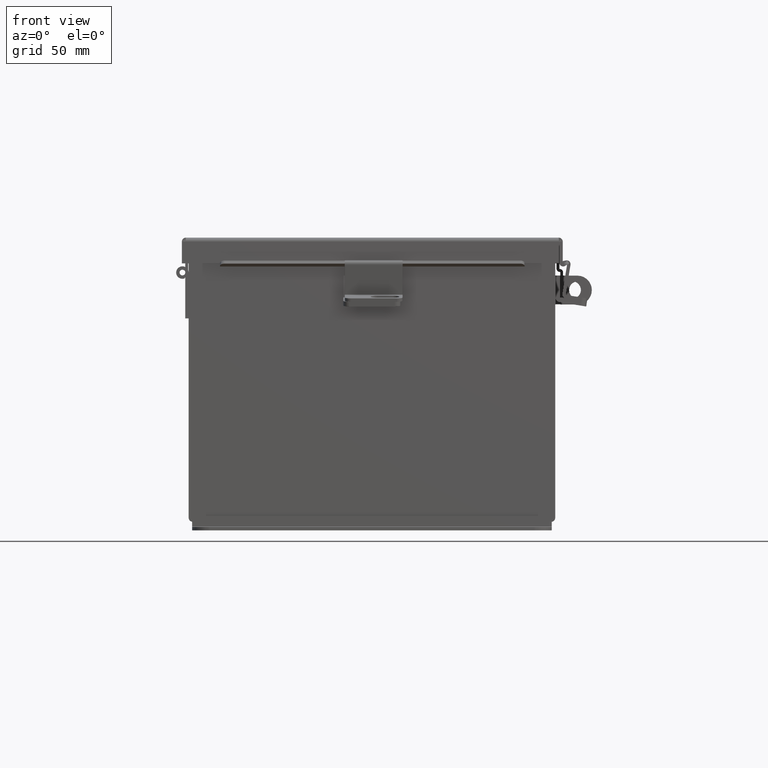
[diagram: clean part render]
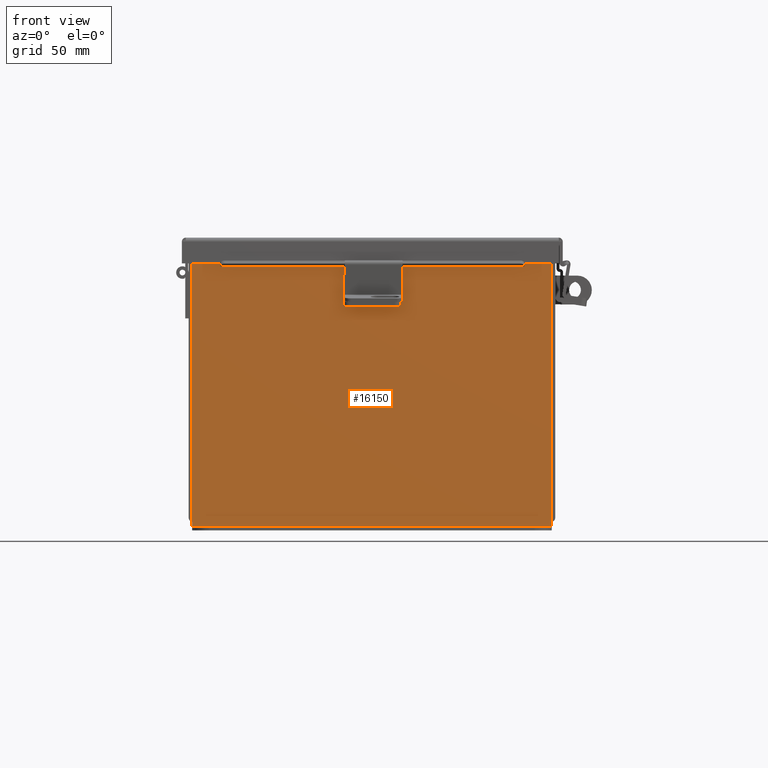
[diagram: same view with one face highlighted and labeled with its STEP entity id]
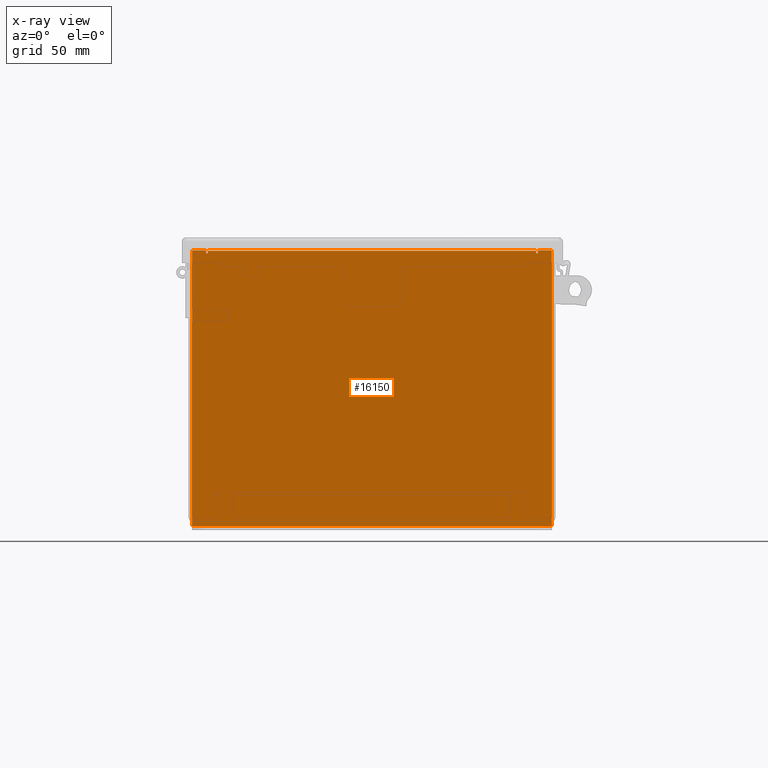
[diagram: x-ray of the same camera — body ghosted, the highlighted face saturated]
A machine part, front view. The second image highlights one B-rep face of the part: STEP entity #16150.
The next image is the same camera in x-ray: the body ghosted, the highlighted face saturated — about 0% of this face is hidden behind the body in this view.
In plain terms, the highlighted planar face has unit normal (-0, 1, -0).
Its self-contained STEP definition (entity closure, byte-faithful):
#58 = VERTEX_POINT ( 'NONE', #13696 ) ;
#595 = DIRECTION ( 'NONE',  ( 0.0000000000000000000, 0.0000000000000000000, -1.000000000000000000 ) ) ;
#620 = VERTEX_POINT ( 'NONE', #15763 ) ;
#646 = CARTESIAN_POINT ( 'NONE',  ( -3.619650000000000900, 0.0000000000000000000, 2.925299999999998200 ) ) ;
#700 = VERTEX_POINT ( 'NONE', #9577 ) ;
#835 = CARTESIAN_POINT ( 'NONE',  ( -3.619650000000000900, 0.0000000000000000000, 2.874949999999999200 ) ) ;
#1187 = EDGE_CURVE ( 'NONE', #3245, #10059, #8783, .T. ) ;
#1227 = DIRECTION ( 'NONE',  ( 1.000000000000000000, 4.910036603141682400E-031, -0.0000000000000000000 ) ) ;
#1308 = EDGE_CURVE ( 'NONE', #9601, #620, #6777, .T. ) ;
#1374 = LINE ( 'NONE', #2570, #14546 ) ;
#1511 = LINE ( 'NONE', #10007, #7909 ) ;
#1564 = VERTEX_POINT ( 'NONE', #835 ) ;
#1647 = VECTOR ( 'NONE', #6453, 39.37007874015748100 ) ;
#2064 = CARTESIAN_POINT ( 'NONE',  ( -3.582300000000000900, 1.092739197465705300E-015, 2.912299999999998300 ) ) ;
#2253 = PLANE ( 'NONE',  #7733 ) ;
#2278 = VERTEX_POINT ( 'NONE', #2742 ) ;
#2472 = ORIENTED_EDGE ( 'NONE', *, *, #3445, .T. ) ;
#2499 = VECTOR ( 'NONE', #8484, 39.37007874015748100 ) ;
#2570 = CARTESIAN_POINT ( 'NONE',  ( -3.925300000000000900, -1.092739197465705300E-015, -3.099299999999999900 ) ) ;
#2583 = DIRECTION ( 'NONE',  ( 0.0000000000000000000, 0.0000000000000000000, -1.000000000000000000 ) ) ;
#2742 = CARTESIAN_POINT ( 'NONE',  ( 3.619649999999999600, 8.741913579725642300E-015, 2.925300000000000500 ) ) ;
#2815 = VERTEX_POINT ( 'NONE', #3841 ) ;
#2977 = EDGE_CURVE ( 'NONE', #10059, #700, #7713, .T. ) ;
#3245 = VERTEX_POINT ( 'NONE', #15278 ) ;
#3320 = VECTOR ( 'NONE', #2583, 39.37007874015748100 ) ;
#3417 = VECTOR ( 'NONE', #14461, 39.37007874015748100 ) ;
#3445 = EDGE_CURVE ( 'NONE', #2278, #2815, #6797, .T. ) ;
#3558 = DIRECTION ( 'NONE',  ( 0.0000000000000000000, 0.0000000000000000000, -1.000000000000000000 ) ) ;
#3715 = ORIENTED_EDGE ( 'NONE', *, *, #13918, .F. ) ;
#3787 = VECTOR ( 'NONE', #8439, 39.37007874015748100 ) ;
#3841 = CARTESIAN_POINT ( 'NONE',  ( 3.925299999999998700, 8.741913579725642300E-015, 2.925300000000001800 ) ) ;
#4402 = DIRECTION ( 'NONE',  ( -2.170286390199978800E-014, -7.888609052210118100E-031, -1.000000000000000000 ) ) ;
#4623 = EDGE_CURVE ( 'NONE', #12218, #11769, #1374, .T. ) ;
#4918 = ORIENTED_EDGE ( 'NONE', *, *, #12412, .T. ) ;
#5026 = CIRCLE ( 'NONE', #14015, 0.01867500000000003900 ) ;
#5189 = CARTESIAN_POINT ( 'NONE',  ( -3.925300000000000900, 0.0000000000000000000, 2.925299999999999600 ) ) ;
#5682 = VECTOR ( 'NONE', #1227, 39.37007874015748100 ) ;
#5717 = CARTESIAN_POINT ( 'NONE',  ( -3.600975000000000900, 0.0000000000000000000, 2.874949999999999200 ) ) ;
#5919 = CARTESIAN_POINT ( 'NONE',  ( 3.582299999999998700, 0.0000000000000000000, 0.0000000000000000000 ) ) ;
#6089 = LINE ( 'NONE', #10164, #5682 ) ;
#6102 = FACE_OUTER_BOUND ( 'NONE', #8841, .T. ) ;
#6453 = DIRECTION ( 'NONE',  ( 0.0000000000000000000, 0.0000000000000000000, 1.000000000000000000 ) ) ;
#6713 = LINE ( 'NONE', #7582, #3320 ) ;
#6777 = LINE ( 'NONE', #7155, #3787 ) ;
#6797 = LINE ( 'NONE', #10611, #3417 ) ;
#6989 = DIRECTION ( 'NONE',  ( 0.0000000000000000000, 0.0000000000000000000, -1.000000000000000000 ) ) ;
#7155 = CARTESIAN_POINT ( 'NONE',  ( -3.582300000000000900, 0.0000000000000000000, 0.0000000000000000000 ) ) ;
#7195 = DIRECTION ( 'NONE',  ( 0.0000000000000000000, 0.0000000000000000000, 1.000000000000000000 ) ) ;
#7202 = CARTESIAN_POINT ( 'NONE',  ( -3.925300000000000900, 0.0000000000000000000, 2.925299999999999600 ) ) ;
#7513 = ORIENTED_EDGE ( 'NONE', *, *, #11636, .T. ) ;
#7582 = CARTESIAN_POINT ( 'NONE',  ( 3.925299999999998700, 8.741913579725642300E-015, 2.925300000000001800 ) ) ;
#7713 = LINE ( 'NONE', #5919, #14108 ) ;
#7733 = AXIS2_PLACEMENT_3D ( 'NONE', #13694, #11186, #3558 ) ;
#7909 = VECTOR ( 'NONE', #12576, 39.37007874015748100 ) ;
#8222 = DIRECTION ( 'NONE',  ( 4.910036603141682400E-031, 1.000000000000000000, -0.0000000000000000000 ) ) ;
#8439 = DIRECTION ( 'NONE',  ( 0.0000000000000000000, 0.0000000000000000000, -1.000000000000000000 ) ) ;
#8484 = DIRECTION ( 'NONE',  ( 1.000000000000000000, 4.910036603141682400E-031, 0.0000000000000000000 ) ) ;
#8783 = CIRCLE ( 'NONE', #16143, 0.01867500000000003900 ) ;
#8841 = EDGE_LOOP ( 'NONE', ( #10585, #3715, #16170, #7513, #11516, #15009, #15756, #2472, #11593, #14837, #4918, #16066 ) ) ;
#9286 = LINE ( 'NONE', #7202, #2499 ) ;
#9333 = LINE ( 'NONE', #12019, #15321 ) ;
#9577 = CARTESIAN_POINT ( 'NONE',  ( 3.582299999999998700, 8.741913579725642300E-015, 2.912300000000000600 ) ) ;
#9601 = VERTEX_POINT ( 'NONE', #2064 ) ;
#9857 = CARTESIAN_POINT ( 'NONE',  ( -3.925300000000000900, -1.092739197465705300E-015, -3.099299999999999900 ) ) ;
#10007 = CARTESIAN_POINT ( 'NONE',  ( -3.619650000000000900, 0.0000000000000000000, 0.0000000000000000000 ) ) ;
#10059 = VERTEX_POINT ( 'NONE', #13855 ) ;
#10164 = CARTESIAN_POINT ( 'NONE',  ( -3.582300000000000900, 1.092739197465705300E-015, 2.912299999999998300 ) ) ;
#10585 = ORIENTED_EDGE ( 'NONE', *, *, #10715, .F. ) ;
#10611 = CARTESIAN_POINT ( 'NONE',  ( -3.925300000000000900, 0.0000000000000000000, 2.925299999999999600 ) ) ;
#10715 = EDGE_CURVE ( 'NONE', #1564, #12723, #1511, .T. ) ;
#10830 = EDGE_CURVE ( 'NONE', #2815, #11769, #6713, .T. ) ;
#11186 = DIRECTION ( 'NONE',  ( -4.910036603141682400E-031, -1.000000000000000000, -0.0000000000000000000 ) ) ;
#11419 = EDGE_CURVE ( 'NONE', #58, #12723, #9286, .T. ) ;
#11516 = ORIENTED_EDGE ( 'NONE', *, *, #2977, .F. ) ;
#11593 = ORIENTED_EDGE ( 'NONE', *, *, #10830, .T. ) ;
#11636 = EDGE_CURVE ( 'NONE', #9601, #700, #6089, .T. ) ;
#11769 = VERTEX_POINT ( 'NONE', #12955 ) ;
#11832 = LINE ( 'NONE', #5189, #1647 ) ;
#12019 = CARTESIAN_POINT ( 'NONE',  ( 3.619649999999936500, 0.0000000000000000000, -7.867722221753078700E-014 ) ) ;
#12218 = VERTEX_POINT ( 'NONE', #9857 ) ;
#12412 = EDGE_CURVE ( 'NONE', #12218, #58, #11832, .T. ) ;
#12576 = DIRECTION ( 'NONE',  ( 0.0000000000000000000, 0.0000000000000000000, 1.000000000000000000 ) ) ;
#12723 = VERTEX_POINT ( 'NONE', #646 ) ;
#12955 = CARTESIAN_POINT ( 'NONE',  ( 3.925299999999998700, 0.0000000000000000000, -3.099299999999999900 ) ) ;
#13694 = CARTESIAN_POINT ( 'NONE',  ( 0.0000000000000000000, 0.0000000000000000000, 0.0000000000000000000 ) ) ;
#13696 = CARTESIAN_POINT ( 'NONE',  ( -3.925300000000000900, 0.0000000000000000000, 2.925299999999999600 ) ) ;
#13855 = CARTESIAN_POINT ( 'NONE',  ( 3.582299999999998700, 8.741913579725642300E-015, 2.874949999999999200 ) ) ;
#13918 = EDGE_CURVE ( 'NONE', #620, #1564, #5026, .T. ) ;
#14015 = AXIS2_PLACEMENT_3D ( 'NONE', #5717, #14628, #6989 ) ;
#14047 = DIRECTION ( 'NONE',  ( 1.000000000000000000, 4.910036603141682400E-031, -0.0000000000000000000 ) ) ;
#14108 = VECTOR ( 'NONE', #7195, 39.37007874015748100 ) ;
#14461 = DIRECTION ( 'NONE',  ( 1.000000000000000000, 4.910036603141682400E-031, 0.0000000000000000000 ) ) ;
#14546 = VECTOR ( 'NONE', #14047, 39.37007874015748100 ) ;
#14628 = DIRECTION ( 'NONE',  ( 4.910036603141682400E-031, 1.000000000000000000, -0.0000000000000000000 ) ) ;
#14837 = ORIENTED_EDGE ( 'NONE', *, *, #4623, .F. ) ;
#14847 = EDGE_CURVE ( 'NONE', #2278, #3245, #9333, .T. ) ;
#15009 = ORIENTED_EDGE ( 'NONE', *, *, #1187, .F. ) ;
#15278 = CARTESIAN_POINT ( 'NONE',  ( 3.619649999999998700, 8.741913579725642300E-015, 2.874949999999999200 ) ) ;
#15321 = VECTOR ( 'NONE', #4402, 39.37007874015748100 ) ;
#15756 = ORIENTED_EDGE ( 'NONE', *, *, #14847, .F. ) ;
#15763 = CARTESIAN_POINT ( 'NONE',  ( -3.582300000000000900, 0.0000000000000000000, 2.874949999999999200 ) ) ;
#15860 = CARTESIAN_POINT ( 'NONE',  ( 3.600974999999998700, 8.741913579725642300E-015, 2.874949999999999200 ) ) ;
#16066 = ORIENTED_EDGE ( 'NONE', *, *, #11419, .T. ) ;
#16143 = AXIS2_PLACEMENT_3D ( 'NONE', #15860, #8222, #595 ) ;
#16150 = ADVANCED_FACE ( 'NONE', ( #6102 ), #2253, .F. ) ;
#16170 = ORIENTED_EDGE ( 'NONE', *, *, #1308, .F. ) ;